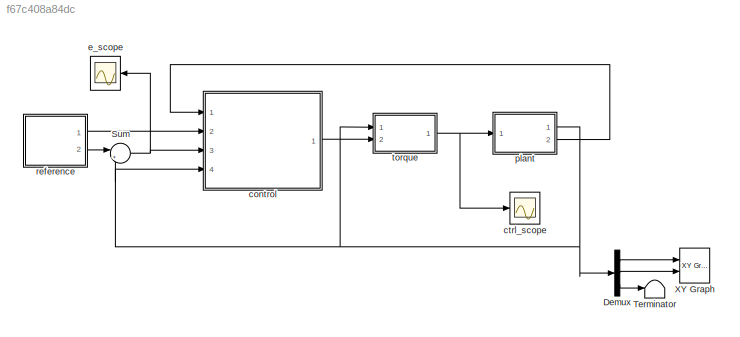
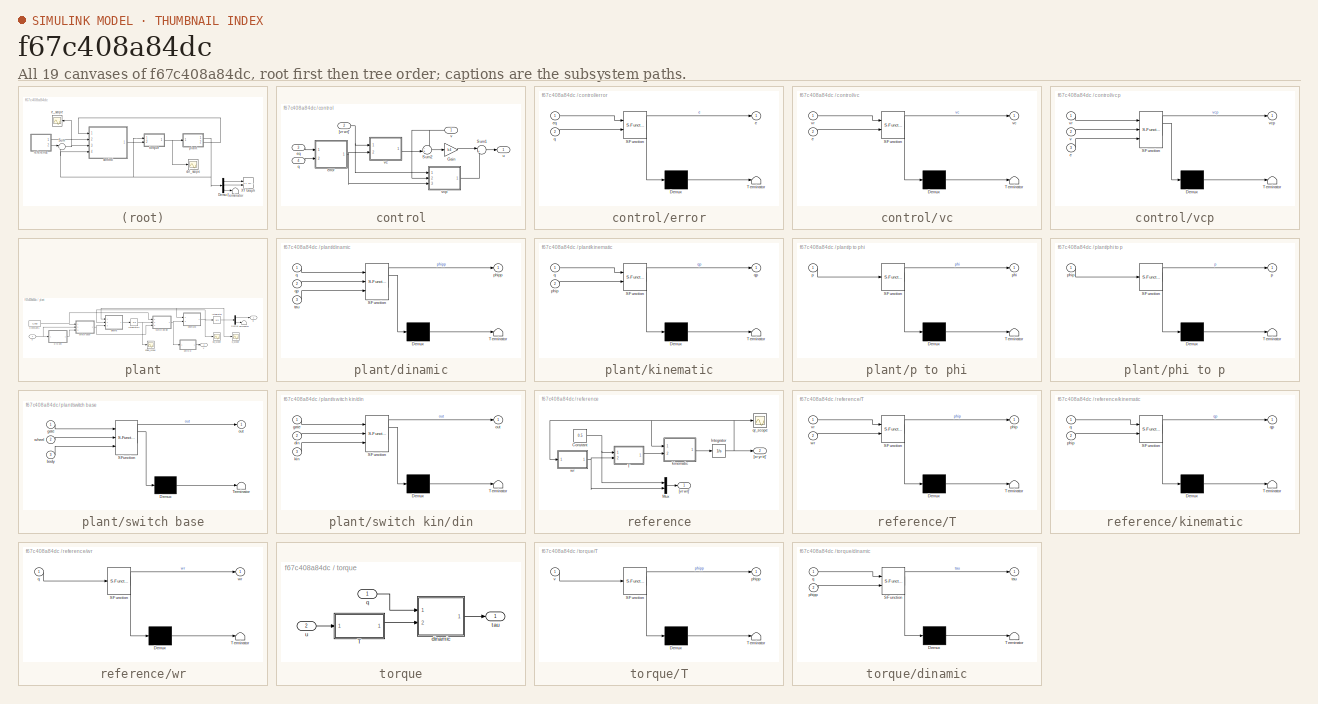
[diagram: thumbnail index - all 19 canvases of the model, root first then tree order]
MODEL slx_f67c408a84dc
KIND model
CONFIG AbsTol = auto
CONFIG EnableMultiTasking = on
CONFIG FixedStep = 0.01
CONFIG MaxStep = auto
CONFIG MinStep = auto
CONFIG RelTol = 1e-5
CONFIG SampleTimeConstraint = Unconstrained
CONFIG Solver = ode1
CONFIG SolverName = ode1
CONFIG StartTime = 0.0
CONFIG StopTime = 10
BLOCK [Demux] Demux
  DisplayOption = bar
  Outputs = 3
  Ports = [1, 3]
BLOCK [Sum] Sum
  AccumDataTypeStr = double
  IconShape = round
  InputSameDT = off
  Inputs = |+-
  OutDataTypeStr = Inherit: Inherit via internal rule
  Ports = [2, 1]
  SaturateOnIntegerOverflow = off
BLOCK [Terminator] Terminator
BLOCK [Reference] XY Graph  REF=simulink/Sinks/XY Graph
  Ports = [2]
  SourceBlock = simulink/Sinks/XY Graph
  SourceProductBaseCode = SL
  SourceProductName = Simulink
  SourceType = XY scope.
BLOCK [SubSystem] control
  Ports = [4, 1]
  RequestExecContextInheritance = off
BLOCK [Gain] control/Gain
  Gain = k4
  OutDataTypeStr = Inherit: Inherit via internal rule
  ParamDataTypeStr = Inherit: Inherit via internal rule
  SaturateOnIntegerOverflow = off
BLOCK [Sum] control/Sum1
  AccumDataTypeStr = double
  IconShape = round
  InputSameDT = off
  Inputs = |++
  OutDataTypeStr = Inherit: Inherit via internal rule
  Ports = [2, 1]
  SaturateOnIntegerOverflow = off
BLOCK [Sum] control/Sum2
  AccumDataTypeStr = double
  IconShape = round
  InputSameDT = off
  Inputs = -+|
  OutDataTypeStr = Inherit: Inherit via internal rule
  Ports = [2, 1]
  SaturateOnIntegerOverflow = off
BLOCK [Inport] control/[vr wr]'
  IconDisplay = Port number
  Port = 2
BLOCK [Inport] control/eq
  IconDisplay = Port number
  Port = 3
BLOCK [SubSystem] control/error
  ErrorFcn = Stateflow.Translate.translate
  PermitHierarchicalResolution = ExplicitOnly
  Ports = [2, 1]
  RequestExecContextInheritance = off
  SFBlockType = MATLAB Function
  TreatAsAtomicUnit = on
BLOCK [Demux] control/error/ Demux 
  Outputs = 1
  Ports = [1, 1]
BLOCK [S-Function] control/error/ SFunction 
  EnableBusSupport = off
  FunctionName = sf_sfun
  PortCounts = [2 2]
  Ports = [2, 2]
  SFcnIsStateOwnerBlock = off
  SFunctionDeploymentMode = off
  Tag = Stateflow S-Function FieLew95_r2018a 1
BLOCK [Terminator] control/error/ Terminator 
BLOCK [Outport] control/error/e
  IconDisplay = Port number
BLOCK [Inport] control/error/eq
  IconDisplay = Port number
BLOCK [Inport] control/error/q
  IconDisplay = Port number
  Port = 2
BLOCK [Inport] control/q
  IconDisplay = Port number
  Port = 4
BLOCK [Outport] control/u
  IconDisplay = Port number
BLOCK [Inport] control/v
  IconDisplay = Port number
BLOCK [SubSystem] control/vc
  ErrorFcn = Stateflow.Translate.translate
  PermitHierarchicalResolution = ExplicitOnly
  Ports = [2, 1]
  RequestExecContextInheritance = off
  SFBlockType = MATLAB Function
  TreatAsAtomicUnit = on
BLOCK [Demux] control/vc/ Demux 
  Outputs = 1
  Ports = [1, 1]
BLOCK [S-Function] control/vc/ SFunction 
  EnableBusSupport = off
  FunctionName = sf_sfun
  Parameters = k1,k2,k3
  PortCounts = [2 2]
  Ports = [2, 2]
  SFcnIsStateOwnerBlock = off
  SFunctionDeploymentMode = off
  Tag = Stateflow S-Function FieLew95_r2018a 2
BLOCK [Terminator] control/vc/ Terminator 
BLOCK [Inport] control/vc/e
  IconDisplay = Port number
  Port = 2
BLOCK [Outport] control/vc/vc
  IconDisplay = Port number
BLOCK [Inport] control/vc/vr
  IconDisplay = Port number
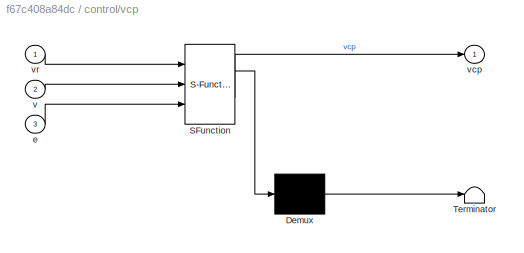
BLOCK [SubSystem] control/vcp
  ErrorFcn = Stateflow.Translate.translate
  PermitHierarchicalResolution = ExplicitOnly
  Ports = [3, 1]
  RequestExecContextInheritance = off
  SFBlockType = MATLAB Function
  TreatAsAtomicUnit = on
BLOCK [Demux] control/vcp/ Demux 
  Outputs = 1
  Ports = [1, 1]
BLOCK [S-Function] control/vcp/ SFunction 
  EnableBusSupport = off
  FunctionName = sf_sfun
  Parameters = k1,k2,k3
  PortCounts = [3 2]
  Ports = [3, 2]
  SFcnIsStateOwnerBlock = off
  SFunctionDeploymentMode = off
  Tag = Stateflow S-Function FieLew95_r2018a 3
BLOCK [Terminator] control/vcp/ Terminator 
BLOCK [Inport] control/vcp/e
  IconDisplay = Port number
  Port = 3
BLOCK [Inport] control/vcp/v
  IconDisplay = Port number
  Port = 2
BLOCK [Outport] control/vcp/vcp
  IconDisplay = Port number
BLOCK [Inport] control/vcp/vr
  IconDisplay = Port number
BLOCK [Scope] ctrl_scope
  Floating = off
  NumInputPorts = 1
  Ports = [1]
  ScopeSpecificationString = Simulink.scopes.TimeScopeBlockCfg('CurrentConfiguration', extmgr.ConfigurationSet(extmgr.Configuration('Core','General UI',true),extmgr.Configuration('Core','Source UI',true),extmgr.Configuration('Sources','WiredSimulink',true,'DataLogging',true,'DataLoggingVariableName','ctrl','DataLoggingSaveFormat','StructureWithTime','DataLoggingDecimation','1','DataLoggingDecimateData',true),extmgr.Configurat...<+888ch>
BLOCK [Scope] e_scope
  Floating = off
  NumInputPorts = 1
  Ports = [1]
  ScopeSpecificationString = Simulink.scopes.TimeScopeBlockCfg('CurrentConfiguration', extmgr.ConfigurationSet(extmgr.Configuration('Core','General UI',true),extmgr.Configuration('Core','Source UI',true),extmgr.Configuration('Sources','WiredSimulink',true,'DataLogging',true,'DataLoggingVariableName','e','DataLoggingSaveFormat','StructureWithTime','DataLoggingDecimation','1','DataLoggingDecimateData',true),extmgr.Configuration...<+885ch>
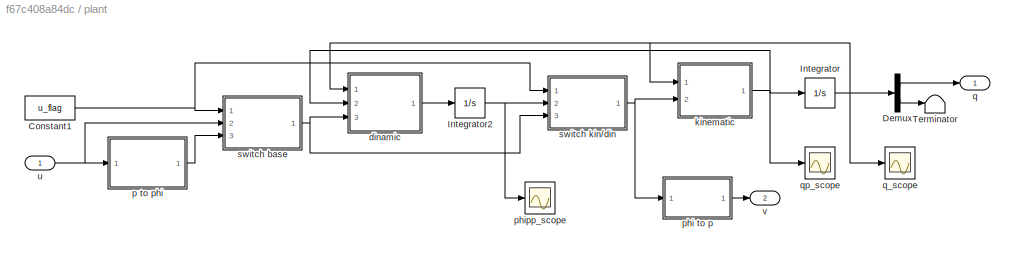
BLOCK [SubSystem] plant
  Ports = [1, 2]
  RequestExecContextInheritance = off
BLOCK [Constant] plant/Constant1
  Value = u_flag
BLOCK [Demux] plant/Demux
  DisplayOption = bar
  Outputs = [3 2]
  Ports = [1, 2]
BLOCK [Integrator] plant/Integrator
  InitialCondition = q0
  Ports = [1, 1]
BLOCK [Integrator] plant/Integrator2
  InitialCondition = [0 0]'
  Ports = [1, 1]
BLOCK [Terminator] plant/Terminator
BLOCK [SubSystem] plant/dinamic
  ErrorFcn = Stateflow.Translate.translate
  PermitHierarchicalResolution = ExplicitOnly
  Ports = [3, 1]
  RequestExecContextInheritance = off
  SFBlockType = MATLAB Function
  TreatAsAtomicUnit = on
BLOCK [Demux] plant/dinamic/ Demux 
  Outputs = 1
  Ports = [1, 1]
BLOCK [S-Function] plant/dinamic/ SFunction 
  EnableBusSupport = off
  FunctionName = sf_sfun
  Parameters = a,b,ir,irod,l,m,r
  PortCounts = [3 2]
  Ports = [3, 2]
  SFcnIsStateOwnerBlock = off
  SFunctionDeploymentMode = off
  Tag = Stateflow S-Function FieLew95_r2018a 4
BLOCK [Terminator] plant/dinamic/ Terminator 
BLOCK [Outport] plant/dinamic/phipp
  IconDisplay = Port number
BLOCK [Inport] plant/dinamic/q
  IconDisplay = Port number
BLOCK [Inport] plant/dinamic/qp
  IconDisplay = Port number
  Port = 2
BLOCK [Inport] plant/dinamic/tau
  IconDisplay = Port number
  Port = 3
BLOCK [SubSystem] plant/kinematic
  ErrorFcn = Stateflow.Translate.translate
  PermitHierarchicalResolution = ExplicitOnly
  Ports = [2, 1]
  RequestExecContextInheritance = off
  SFBlockType = MATLAB Function
  TreatAsAtomicUnit = on
BLOCK [Demux] plant/kinematic/ Demux 
  Outputs = 1
  Ports = [1, 1]
BLOCK [S-Function] plant/kinematic/ SFunction 
  EnableBusSupport = off
  FunctionName = sf_sfun
  Parameters = a,b,l,r
  PortCounts = [2 2]
  Ports = [2, 2]
  SFcnIsStateOwnerBlock = off
  SFunctionDeploymentMode = off
  Tag = Stateflow S-Function FieLew95_r2018a 12
BLOCK [Terminator] plant/kinematic/ Terminator 
BLOCK [Inport] plant/kinematic/phip
  IconDisplay = Port number
  Port = 2
BLOCK [Inport] plant/kinematic/q
  IconDisplay = Port number
BLOCK [Outport] plant/kinematic/qp
  IconDisplay = Port number
BLOCK [SubSystem] plant/p to phi
  ErrorFcn = Stateflow.Translate.translate
  PermitHierarchicalResolution = ExplicitOnly
  Ports = [1, 1]
  RequestExecContextInheritance = off
  SFBlockType = MATLAB Function
  TreatAsAtomicUnit = on
BLOCK [Demux] plant/p to phi/ Demux 
  Outputs = 1
  Ports = [1, 1]
BLOCK [S-Function] plant/p to phi/ SFunction 
  EnableBusSupport = off
  FunctionName = sf_sfun
  Parameters = l,r
  PortCounts = [1 2]
  Ports = [1, 2]
  SFcnIsStateOwnerBlock = off
  SFunctionDeploymentMode = off
  Tag = Stateflow S-Function FieLew95_r2018a 13
BLOCK [Terminator] plant/p to phi/ Terminator 
BLOCK [Inport] plant/p to phi/p
  IconDisplay = Port number
BLOCK [Outport] plant/p to phi/phi
  IconDisplay = Port number
BLOCK [SubSystem] plant/phi to p
  ErrorFcn = Stateflow.Translate.translate
  PermitHierarchicalResolution = ExplicitOnly
  Ports = [1, 1]
  RequestExecContextInheritance = off
  SFBlockType = MATLAB Function
  TreatAsAtomicUnit = on
BLOCK [Demux] plant/phi to p/ Demux 
  Outputs = 1
  Ports = [1, 1]
BLOCK [S-Function] plant/phi to p/ SFunction 
  EnableBusSupport = off
  FunctionName = sf_sfun
  Parameters = l,r
  PortCounts = [1 2]
  Ports = [1, 2]
  SFcnIsStateOwnerBlock = off
  SFunctionDeploymentMode = off
  Tag = Stateflow S-Function FieLew95_r2018a 14
BLOCK [Terminator] plant/phi to p/ Terminator 
BLOCK [Outport] plant/phi to p/p
  IconDisplay = Port number
BLOCK [Inport] plant/phi to p/phip
  IconDisplay = Port number
BLOCK [Scope] plant/phipp_scope
  Floating = off
  NumInputPorts = 1
  Ports = [1]
  ScopeSpecificationString = Simulink.scopes.TimeScopeBlockCfg('CurrentConfiguration', extmgr.ConfigurationSet(extmgr.Configuration('Core','General UI',true),extmgr.Configuration('Core','Source UI',true),extmgr.Configuration('Sources','WiredSimulink',true,'DataLogging',true,'DataLoggingVariableName','phipp','DataLoggingSaveFormat','StructureWithTime','DataLoggingDecimation','1','DataLoggingDecimateData',true),extmgr.Configura...<+1661ch>
BLOCK [Outport] plant/q
  IconDisplay = Port number
BLOCK [Scope] plant/q_scope
  Floating = off
  NumInputPorts = 1
  Ports = [1]
  ScopeSpecificationString = Simulink.scopes.TimeScopeBlockCfg('CurrentConfiguration', extmgr.ConfigurationSet(extmgr.Configuration('Core','General UI',true),extmgr.Configuration('Core','Source UI',true),extmgr.Configuration('Sources','WiredSimulink',true,'DataLogging',true,'DataLoggingVariableName','q','DataLoggingSaveFormat','StructureWithTime','DataLoggingDecimation','1','DataLoggingDecimateData',true),extmgr.Configuration...<+1657ch>
BLOCK [Scope] plant/qp_scope
  Floating = off
  NumInputPorts = 1
  Ports = [1]
  ScopeSpecificationString = Simulink.scopes.TimeScopeBlockCfg('CurrentConfiguration', extmgr.ConfigurationSet(extmgr.Configuration('Core','General UI',true),extmgr.Configuration('Core','Source UI',true),extmgr.Configuration('Sources','WiredSimulink',true,'DataLogging',true,'DataLoggingVariableName','qp','DataLoggingSaveFormat','StructureWithTime','DataLoggingDecimation','1','DataLoggingDecimateData',true),extmgr.Configuratio...<+1658ch>
BLOCK [SubSystem] plant/switch base
  ErrorFcn = Stateflow.Translate.translate
  PermitHierarchicalResolution = ExplicitOnly
  Ports = [3, 1]
  RequestExecContextInheritance = off
  SFBlockType = MATLAB Function
  TreatAsAtomicUnit = on
BLOCK [Demux] plant/switch base/ Demux 
  Outputs = 1
  Ports = [1, 1]
BLOCK [S-Function] plant/switch base/ SFunction 
  EnableBusSupport = off
  FunctionName = sf_sfun
  PortCounts = [3 2]
  Ports = [3, 2]
  SFcnIsStateOwnerBlock = off
  SFunctionDeploymentMode = off
  Tag = Stateflow S-Function FieLew95_r2018a 6
BLOCK [Terminator] plant/switch base/ Terminator 
BLOCK [Inport] plant/switch base/body
  IconDisplay = Port number
  Port = 3
BLOCK [Inport] plant/switch base/gate
  IconDisplay = Port number
BLOCK [Outport] plant/switch base/out
  IconDisplay = Port number
BLOCK [Inport] plant/switch base/wheel
  IconDisplay = Port number
  Port = 2
BLOCK [SubSystem] plant/switch kin//din
  ErrorFcn = Stateflow.Translate.translate
  PermitHierarchicalResolution = ExplicitOnly
  Ports = [3, 1]
  RequestExecContextInheritance = off
  SFBlockType = MATLAB Function
  TreatAsAtomicUnit = on
BLOCK [Demux] plant/switch kin//din/ Demux 
  Outputs = 1
  Ports = [1, 1]
BLOCK [S-Function] plant/switch kin//din/ SFunction 
  EnableBusSupport = off
  FunctionName = sf_sfun
  PortCounts = [3 2]
  Ports = [3, 2]
  SFcnIsStateOwnerBlock = off
  SFunctionDeploymentMode = off
  Tag = Stateflow S-Function FieLew95_r2018a 7
BLOCK [Terminator] plant/switch kin//din/ Terminator 
BLOCK [Inport] plant/switch kin//din/din
  IconDisplay = Port number
  Port = 2
BLOCK [Inport] plant/switch kin//din/gate
  IconDisplay = Port number
BLOCK [Inport] plant/switch kin//din/kin
  IconDisplay = Port number
  Port = 3
BLOCK [Outport] plant/switch kin//din/out
  IconDisplay = Port number
BLOCK [Inport] plant/u
  IconDisplay = Port number
BLOCK [Outport] plant/v
  IconDisplay = Port number
  Port = 2
BLOCK [SubSystem] reference
  Ports = [0, 2]
  RequestExecContextInheritance = off
BLOCK [Constant] reference/Constant
  Value = 0.5
BLOCK [Integrator] reference/Integrator
  InitialCondition = q0
  Ports = [1, 1]
BLOCK [Mux] reference/Mux
  DisplayOption = bar
  Inputs = 2
  Ports = [2, 1]
BLOCK [SubSystem] reference/T
  ErrorFcn = Stateflow.Translate.translate
  PermitHierarchicalResolution = ExplicitOnly
  Ports = [2, 1]
  RequestExecContextInheritance = off
  SFBlockType = MATLAB Function
  TreatAsAtomicUnit = on
BLOCK [Demux] reference/T/ Demux 
  Outputs = 1
  Ports = [1, 1]
BLOCK [S-Function] reference/T/ SFunction 
  EnableBusSupport = off
  FunctionName = sf_sfun
  Parameters = l,r
  PortCounts = [2 2]
  Ports = [2, 2]
  SFcnIsStateOwnerBlock = off
  SFunctionDeploymentMode = off
  Tag = Stateflow S-Function FieLew95_r2018a 5
BLOCK [Terminator] reference/T/ Terminator 
BLOCK [Outport] reference/T/phip
  IconDisplay = Port number
BLOCK [Inport] reference/T/vr
  IconDisplay = Port number
BLOCK [Inport] reference/T/wr
  IconDisplay = Port number
  Port = 2
BLOCK [Outport] reference/[vr wr]' 
  IconDisplay = Port number
BLOCK [Outport] reference/[xr yr tr]' 
  IconDisplay = Port number
  Port = 2
BLOCK [SubSystem] reference/kinematic
  ErrorFcn = Stateflow.Translate.translate
  PermitHierarchicalResolution = ExplicitOnly
  Ports = [2, 1]
  RequestExecContextInheritance = off
  SFBlockType = MATLAB Function
  TreatAsAtomicUnit = on
BLOCK [Demux] reference/kinematic/ Demux 
  Outputs = 1
  Ports = [1, 1]
BLOCK [S-Function] reference/kinematic/ SFunction 
  EnableBusSupport = off
  FunctionName = sf_sfun
  Parameters = a,b,l,r
  PortCounts = [2 2]
  Ports = [2, 2]
  SFcnIsStateOwnerBlock = off
  SFunctionDeploymentMode = off
  Tag = Stateflow S-Function FieLew95_r2018a 11
BLOCK [Terminator] reference/kinematic/ Terminator 
BLOCK [Inport] reference/kinematic/phip
  IconDisplay = Port number
  Port = 2
BLOCK [Inport] reference/kinematic/q
  IconDisplay = Port number
BLOCK [Outport] reference/kinematic/qp
  IconDisplay = Port number
BLOCK [Scope] reference/qr_scope
  Floating = off
  NumInputPorts = 1
  Ports = [1]
  ScopeSpecificationString = Simulink.scopes.TimeScopeBlockCfg('CurrentConfiguration', extmgr.ConfigurationSet(extmgr.Configuration('Core','General UI',true),extmgr.Configuration('Core','Source UI',true),extmgr.Configuration('Sources','WiredSimulink',true,'DataLogging',true,'DataLoggingVariableName','qr','DataLoggingSaveFormat','StructureWithTime','DataLoggingDecimation','1','DataLoggingDecimateData',true),extmgr.Configuratio...<+886ch>
BLOCK [SubSystem] reference/wr
  ErrorFcn = Stateflow.Translate.translate
  PermitHierarchicalResolution = ExplicitOnly
  Ports = [1, 1]
  RequestExecContextInheritance = off
  SFBlockType = MATLAB Function
  TreatAsAtomicUnit = on
BLOCK [Demux] reference/wr/ Demux 
  Outputs = 1
  Ports = [1, 1]
BLOCK [S-Function] reference/wr/ SFunction 
  EnableBusSupport = off
  FunctionName = sf_sfun
  PortCounts = [1 2]
  Ports = [1, 2]
  SFcnIsStateOwnerBlock = off
  SFunctionDeploymentMode = off
  Tag = Stateflow S-Function FieLew95_r2018a 10
BLOCK [Terminator] reference/wr/ Terminator 
BLOCK [Inport] reference/wr/q
  IconDisplay = Port number
BLOCK [Outport] reference/wr/wr
  IconDisplay = Port number
BLOCK [SubSystem] torque
  Ports = [2, 1]
  RequestExecContextInheritance = off
BLOCK [SubSystem] torque/T
  ErrorFcn = Stateflow.Translate.translate
  PermitHierarchicalResolution = ExplicitOnly
  Ports = [1, 1]
  RequestExecContextInheritance = off
  SFBlockType = MATLAB Function
  TreatAsAtomicUnit = on
BLOCK [Demux] torque/T/ Demux 
  Outputs = 1
  Ports = [1, 1]
BLOCK [S-Function] torque/T/ SFunction 
  EnableBusSupport = off
  FunctionName = sf_sfun
  Parameters = l,r
  PortCounts = [1 2]
  Ports = [1, 2]
  SFcnIsStateOwnerBlock = off
  SFunctionDeploymentMode = off
  Tag = Stateflow S-Function FieLew95_r2018a 8
BLOCK [Terminator] torque/T/ Terminator 
BLOCK [Outport] torque/T/phipp
  IconDisplay = Port number
BLOCK [Inport] torque/T/v
  IconDisplay = Port number
BLOCK [SubSystem] torque/dinamic
  ErrorFcn = Stateflow.Translate.translate
  PermitHierarchicalResolution = ExplicitOnly
  Ports = [2, 1]
  RequestExecContextInheritance = off
  SFBlockType = MATLAB Function
  TreatAsAtomicUnit = on
BLOCK [Demux] torque/dinamic/ Demux 
  Outputs = 1
  Ports = [1, 1]
BLOCK [S-Function] torque/dinamic/ SFunction 
  EnableBusSupport = off
  FunctionName = sf_sfun
  Parameters = a,b,ir,irod,l,m,r
  PortCounts = [2 2]
  Ports = [2, 2]
  SFcnIsStateOwnerBlock = off
  SFunctionDeploymentMode = off
  Tag = Stateflow S-Function FieLew95_r2018a 9
BLOCK [Terminator] torque/dinamic/ Terminator 
BLOCK [Inport] torque/dinamic/phipp
  IconDisplay = Port number
  Port = 2
BLOCK [Inport] torque/dinamic/q
  IconDisplay = Port number
BLOCK [Outport] torque/dinamic/tau
  IconDisplay = Port number
BLOCK [Inport] torque/q
  IconDisplay = Port number
BLOCK [Outport] torque/tau
  IconDisplay = Port number
BLOCK [Inport] torque/u
  IconDisplay = Port number
  Port = 2
LINE Demux:1 -> XY Graph:1
LINE Demux:2 -> XY Graph:2
LINE Demux:3 -> Terminator:1
NET Sum:1 -> control:3, e_scope:1
LINE control/Gain:1 -> control/Sum1:1
LINE control/Sum1:1 -> control/u:1
LINE control/Sum2:1 -> control/Gain:1
NET control/[vr wr]':1 -> control/vc:1, control/vcp:1
LINE control/eq:1 -> control/error:1
NET control/error:1 -> control/vc:2, control/vcp:3
LINE control/q:1 -> control/error:2
NET control/v:1 -> control/Sum2:1, control/vcp:2
LINE control/vc:1 -> control/Sum2:2
LINE control/vcp:1 -> control/Sum1:2
LINE control:1 -> torque:2
NET plant/Constant1:1 -> plant/switch base:1, plant/switch kin//din:1
LINE plant/Demux:1 -> plant/q:1
LINE plant/Demux:2 -> plant/Terminator:1
NET plant/Integrator2:1 -> plant/phipp_scope:1, plant/switch kin//din:2
NET plant/Integrator:1 -> plant/Demux:1, plant/dinamic:1, plant/kinematic:1, plant/q_scope:1
LINE plant/dinamic:1 -> plant/Integrator2:1
NET plant/kinematic:1 -> plant/Integrator:1, plant/dinamic:2, plant/qp_scope:1
LINE plant/p to phi:1 -> plant/switch base:3
LINE plant/phi to p:1 -> plant/v:1
NET plant/switch base:1 -> plant/dinamic:3, plant/switch kin//din:3
NET plant/switch kin//din:1 -> plant/kinematic:2, plant/phi to p:1
NET plant/u:1 -> plant/p to phi:1, plant/switch base:2
NET plant:1 -> Demux:1, Sum:2, control:4, torque:1
LINE plant:2 -> control:1
NET reference/Constant:1 -> reference/Mux:1, reference/T:1
NET reference/Integrator:1 -> reference/[xr yr tr]' :1, reference/kinematic:1, reference/qr_scope:1, reference/wr:1
LINE reference/Mux:1 -> reference/[vr wr]' :1
LINE reference/T:1 -> reference/kinematic:2
LINE reference/kinematic:1 -> reference/Integrator:1
NET reference/wr:1 -> reference/Mux:2, reference/T:2
LINE reference:1 -> control:2
LINE reference:2 -> Sum:1
LINE torque/T:1 -> torque/dinamic:2
LINE torque/dinamic:1 -> torque/tau:1
LINE torque/q:1 -> torque/dinamic:1
LINE torque/u:1 -> torque/T:1
NET torque:1 -> ctrl_scope:1, plant:1
note: NET lines group one-source signal fan-out (src -> all destinations, sorted); 1:1 wires keep LINE
CHART control/error states=1 transitions=1
  STATE_LABEL 'eML_blk_kernel()'
  STATE_LABEL 'SCRIPT:\nfunction e = fcn(eq,q)\n%#eml\n\n Te = [cos(q(3)) sin(q(3)) 0; -sin(q(3)) cos(q(3)) 0; 0 0 1];\n \n e = Te*eq;\n\nend'
CHART control/vc states=1 transitions=1
  STATE_LABEL 'eML_blk_kernel()'
  STATE_LABEL 'SCRIPT:\nfunction vc = fcn(vr,e,k1,k2,k3)\n%#eml\n\n vc = [vr(1)*cos(e(3))+k1*e(1);vr(2)+k2*vr(1)*e(2)+k3*vr(1)*sin(e(3))];\n \nend'
CHART control/vcp states=1 transitions=1
  STATE_LABEL 'eML_blk_kernel()'
  STATE_LABEL 'SCRIPT:\nfunction vcp = fcn(vr,v,e,k1,k2,k3)\n%#eml\n\n ep = [v(2)*e(2)-v(1)+vr(1)*cos(e(3));-v(2)*e(1)+vr(1)*sin(e(3));vr(2)-v(2)];\n vcp = [k1 0 -vr(1)*sin(e(3)); 0 k2*vr(1) k3*vr(1)*cos(e(3))]*ep;\n \nend'
CHART plant/dinamic states=1 transitions=1
  STATE_LABEL 'eML_blk_kernel()'
  STATE_LABEL "SCRIPT:\nfunction phipp = fcn(r,l,a,b,m,ir,irod,q,qp,tau)\n%#eml\n\n d = l/2;\n c = r/(2*d);\n be = d+b;\n bd = d-b;\n\n iee = irod;\n idd = irod;\n \n t = q(3);\n %tp = qp(3);\n \n R = [cos(t) sin(t) 0;-sin(t) cos(t) 0;0 0 1];\n %Rp = [-sin(t)*tp cos(t)*tp 0; -cos(t)*tp -sin(t)*tp 0; 0 0 0];\n\n Sig = [c*be c*bd;c*a -c*a; c -c];\n\n S = [R'*Sig;eye(2)];\n %Sp = [Rp'*Sig; zeros(2)];\n\n m1 = m*(a*sin(t)+b*cos(t));\n m2 =...<+373ch>"
CHART reference/T states=1 transitions=1
  STATE_LABEL 'eML_blk_kernel()'
  STATE_LABEL "SCRIPT:\nfunction phip = fcn(r,l,vr,wr)\n%#eml\n\n d = l/2;\n\n E = [1/r d/r;1/r -d/r];\n\n phip = E*[vr wr]';\n\nend"
CHART plant/switch base states=1 transitions=1
  STATE_LABEL 'eML_blk_kernel()'
  STATE_LABEL 'SCRIPT:\nfunction out = fcn(gate,wheel,body)\n%#eml\n\n gate = mod(gate,2);\n \n if gate == 0\n   out = body;\n else\n   out = wheel;\n end\nend'
CHART plant/switch kin/din states=1 transitions=1
  STATE_LABEL 'eML_blk_kernel()'
  STATE_LABEL 'SCRIPT:\nfunction out = fcn(gate,din,kin)\n%#eml\n\n if gate <= 2\n   out = kin;\n else\n   out = din;\n end\nend'
CHART torque/T states=1 transitions=1
  STATE_LABEL 'eML_blk_kernel()'
  STATE_LABEL 'SCRIPT:\nfunction phipp = fcn(r,l,v)\n%#eml\n\n d = l/2;\n\n E = [1/r d/r;1/r -d/r];\n\n phipp = E*v;\n\nend'
CHART torque/dinamic states=1 transitions=1
  STATE_LABEL 'eML_blk_kernel()'
  STATE_LABEL "SCRIPT:\nfunction tau = fcn(r,l,a,b,m,ir,irod,q,phipp)\n%#eml\n\n d = l/2;\n c = r/(2*d);\n be = d+b;\n bd = d-b;\n\n iee = irod;\n idd = irod;\n \n t = q(3);\n \n R = [cos(t) sin(t) 0;-sin(t) cos(t) 0;0 0 1];\n\n Sig = [c*be c*bd;c*a -c*a; c -c];\n\n S = [R'*Sig;eye(2)];\n\n m1 = m*(a*sin(t)+b*cos(t));\n m2 = m*(a*cos(t)-b*sin(t));\n\n M = [m 0 m1 0 0;0 m -m2 0 0;m1 -m2 ir 0 0;0 0 0 idd 0;0 0 0 0 iee];\n\n H = S'*M*S;\n \n...<+19ch>"
CHART reference/wr states=1 transitions=1
  STATE_LABEL 'eML_blk_kernel()'
  STATE_LABEL 'SCRIPT:\nfunction wr = fcn(q)\n%#eml\n\n if q(1) < 3 && q(2) < 2;\n   wr = 0;\n else\n   wr = 0.125;\n end\n \nend'
CHART reference/kinematic states=1 transitions=1
  STATE_LABEL 'eML_blk_kernel()'
  STATE_LABEL 'SCRIPT:\nfunction qp = fcn(r,l,a,b,q,phip)\n%#eml\n\n d = l/2;\n c = r/(2*d);\n\n t = q(3);\n \n be = d+b;\n bd = d-b;\n\n S = [c*(be*cos(t)-a*sin(t)) c*(bd*cos(t)+a*sin(t));...\n      c*(be*sin(t)+a*cos(t)) c*(bd*sin(t)-a*cos(t));...\n      c -c];\n\n qp = S*phip;\n\nend'
CHART plant/kinematic states=1 transitions=1
  STATE_LABEL 'eML_blk_kernel()'
  STATE_LABEL 'SCRIPT:\nfunction qp = fcn(r,l,a,b,q,phip)\n%#eml\n\n d = l/2;\n c = r/(2*d);\n\n t = q(3);\n \n be = d+b;\n bd = d-b;\n\n S = [c*(be*cos(t)-a*sin(t)) c*(bd*cos(t)+a*sin(t));...\n      c*(be*sin(t)+a*cos(t)) c*(bd*sin(t)-a*cos(t));...\n      c -c;\n      1 0;\n      0 1];\n\n qp = S*phip;\n\nend'
CHART plant/p to phi states=1 transitions=1
  STATE_LABEL 'eML_blk_kernel()'
  STATE_LABEL 'SCRIPT:\nfunction phi = fcn(r,l,p)\n%#eml\n\n d = l/2;\n\n E = [1/r d/r;1/r -d/r];\n\n phi = E*p;\n\nend'
CHART plant/phi to p states=1 transitions=1
  STATE_LABEL 'eML_blk_kernel()'
  STATE_LABEL 'SCRIPT:\nfunction p = fcn(r,l,phip)\n%#eml\n\n d = l/2;\n\n E = [1/r d/r;1/r -d/r];\n\n p = E\\phip;\n\nend'
